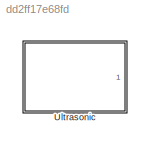
MODEL slx_dd2ff17e68fd
KIND library
CONFIG AbsTol = auto
CONFIG FixedStep = auto
CONFIG MaxStep = auto
CONFIG MinStep = auto
CONFIG RelTol = 1e-3
CONFIG SampleTimeConstraint = Unconstrained
CONFIG Solver = ode45
CONFIG SolverMode = Auto
CONFIG SolverName = ode45
CONFIG StartTime = 0.0
CONFIG StopTime = 10.0
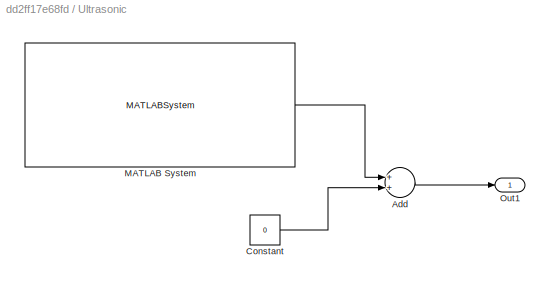
BLOCK [SubSystem] Ultrasonic
  Ports = [0, 1]
  RequestExecContextInheritance = off
  Variant = off
BLOCK [Sum] Ultrasonic/Add
  InputSameDT = off
  OutDataTypeStr = Inherit: Inherit via internal rule
  Ports = [2, 1]
  SaturateOnIntegerOverflow = off
BLOCK [Constant] Ultrasonic/Constant
  SampleTime = SampleTime
  Value = 0
BLOCK [MATLABSystem] Ultrasonic/MATLAB System
  MaskDisplay = disp('USSensor');\nport_label('output',1,'recordedDistance');
  MaskType = arduino.USSensor
  Ports = [0, 1]
  SimulateUsing = Interpreted execution
  System = arduino.USSensor
  pinNum = pinNum
  useInch = on
BLOCK [Outport] Ultrasonic/Out1
  IconDisplay = Port number
LINE Ultrasonic/Add:1 -> Ultrasonic/Out1:1
LINE Ultrasonic/Constant:1 -> Ultrasonic/Add:2
LINE Ultrasonic/MATLAB System:1 -> Ultrasonic/Add:1
